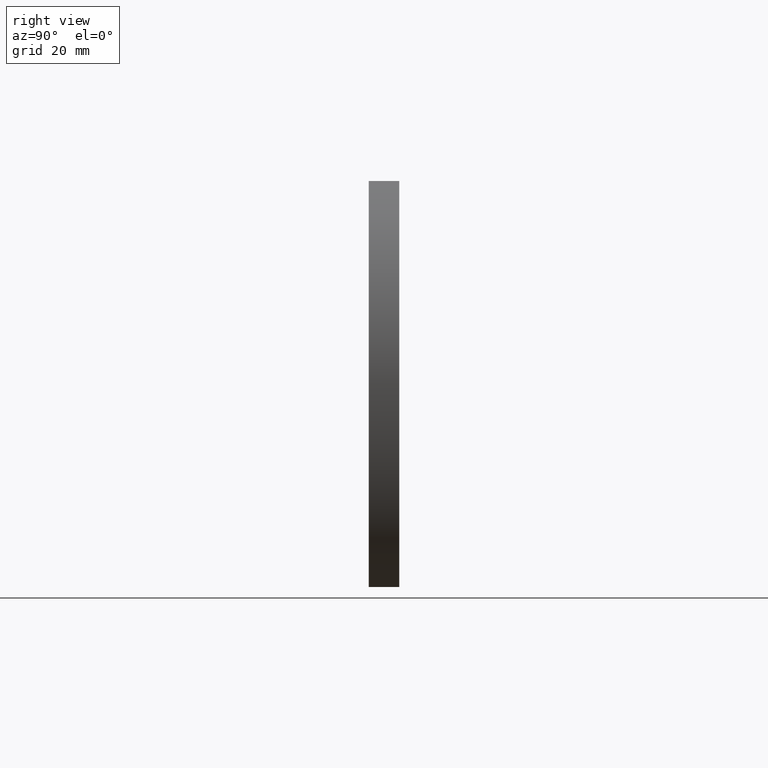
[diagram: clean part render]
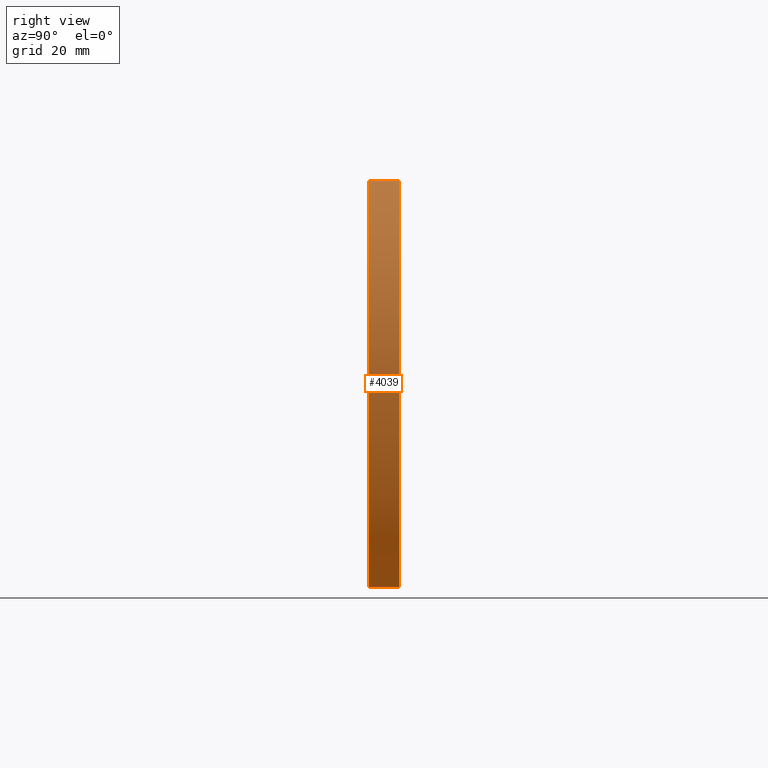
[diagram: same view with one face highlighted and labeled with its STEP entity id]
A machine part, right view. The second image highlights one B-rep face of the part: STEP entity #4039.
In plain terms, the highlighted cylindrical surface (partial cylindrical patch) has radius 59.3629 mm, axis along (-0, -1, -0).
Its self-contained STEP definition (entity closure, byte-faithful):
#41 = DIRECTION ( 'NONE',  ( -0.0000000000000000000, -1.000000000000000000, -0.0000000000000000000 ) ) ;
#244 = EDGE_CURVE ( 'NONE', #637, #7663, #2642, .T. ) ;
#349 = ORIENTED_EDGE ( 'NONE', *, *, #244, .T. ) ;
#380 = VERTEX_POINT ( 'NONE', #4914 ) ;
#637 = VERTEX_POINT ( 'NONE', #3137 ) ;
#822 = VECTOR ( 'NONE', #8265, 1000.000000000000000 ) ;
#985 = CARTESIAN_POINT ( 'NONE',  ( 0.6370967741935809100, 0.0000000000000000000, 0.0000000000000000000 ) ) ;
#1164 = CARTESIAN_POINT ( 'NONE',  ( 44.49999999999997900, 6.000000000000000000, 40.00000000000001400 ) ) ;
#1681 = DIRECTION ( 'NONE',  ( 0.0000000000000000000, 1.000000000000000000, -0.0000000000000000000 ) ) ;
#1735 = EDGE_CURVE ( 'NONE', #4739, #380, #2690, .T. ) ;
#2420 = DIRECTION ( 'NONE',  ( 0.0000000000000000000, 0.0000000000000000000, -1.000000000000000000 ) ) ;
#2513 = ORIENTED_EDGE ( 'NONE', *, *, #1735, .F. ) ;
#2556 = CARTESIAN_POINT ( 'NONE',  ( 44.49999999999999300, 0.0000000000000000000, -39.99999999999999300 ) ) ;
#2642 = CIRCLE ( 'NONE', #4532, 59.36290322580642700 ) ;
#2690 = CIRCLE ( 'NONE', #3838, 59.36290322580642700 ) ;
#2845 = VECTOR ( 'NONE', #41, 1000.000000000000000 ) ;
#2941 = AXIS2_PLACEMENT_3D ( 'NONE', #3059, #6623, #8114 ) ;
#2950 = CARTESIAN_POINT ( 'NONE',  ( 0.6370967741935809100, 6.000000000000000000, 0.0000000000000000000 ) ) ;
#3059 = CARTESIAN_POINT ( 'NONE',  ( 0.6370967741935809100, 6.000000000000000000, 0.0000000000000000000 ) ) ;
#3064 = EDGE_CURVE ( 'NONE', #380, #7663, #7061, .T. ) ;
#3137 = CARTESIAN_POINT ( 'NONE',  ( 44.49999999999997900, 0.0000000000000000000, 40.00000000000001400 ) ) ;
#3511 = LINE ( 'NONE', #1164, #822 ) ;
#3632 = EDGE_CURVE ( 'NONE', #4739, #637, #3511, .T. ) ;
#3835 = ORIENTED_EDGE ( 'NONE', *, *, #3064, .F. ) ;
#3838 = AXIS2_PLACEMENT_3D ( 'NONE', #2950, #8629, #4443 ) ;
#3862 = EDGE_LOOP ( 'NONE', ( #349, #3835, #2513, #8448 ) ) ;
#4039 = ADVANCED_FACE ( 'NONE', ( #8820 ), #8728, .T. ) ;
#4156 = CARTESIAN_POINT ( 'NONE',  ( 44.49999999999997900, 6.000000000000000000, 40.00000000000001400 ) ) ;
#4345 = CARTESIAN_POINT ( 'NONE',  ( 44.49999999999999300, 6.000000000000000000, -39.99999999999999300 ) ) ;
#4443 = DIRECTION ( 'NONE',  ( 0.0000000000000000000, 0.0000000000000000000, -1.000000000000000000 ) ) ;
#4532 = AXIS2_PLACEMENT_3D ( 'NONE', #985, #1681, #2420 ) ;
#4739 = VERTEX_POINT ( 'NONE', #4156 ) ;
#4914 = CARTESIAN_POINT ( 'NONE',  ( 44.49999999999999300, 6.000000000000000000, -39.99999999999999300 ) ) ;
#6623 = DIRECTION ( 'NONE',  ( -0.0000000000000000000, -1.000000000000000000, -0.0000000000000000000 ) ) ;
#7061 = LINE ( 'NONE', #4345, #2845 ) ;
#7663 = VERTEX_POINT ( 'NONE', #2556 ) ;
#8114 = DIRECTION ( 'NONE',  ( 0.0000000000000000000, 0.0000000000000000000, -1.000000000000000000 ) ) ;
#8265 = DIRECTION ( 'NONE',  ( -0.0000000000000000000, -1.000000000000000000, -0.0000000000000000000 ) ) ;
#8448 = ORIENTED_EDGE ( 'NONE', *, *, #3632, .T. ) ;
#8629 = DIRECTION ( 'NONE',  ( 0.0000000000000000000, 1.000000000000000000, -0.0000000000000000000 ) ) ;
#8728 = CYLINDRICAL_SURFACE ( 'NONE', #2941, 59.36290322580642700 ) ;
#8820 = FACE_OUTER_BOUND ( 'NONE', #3862, .T. ) ;